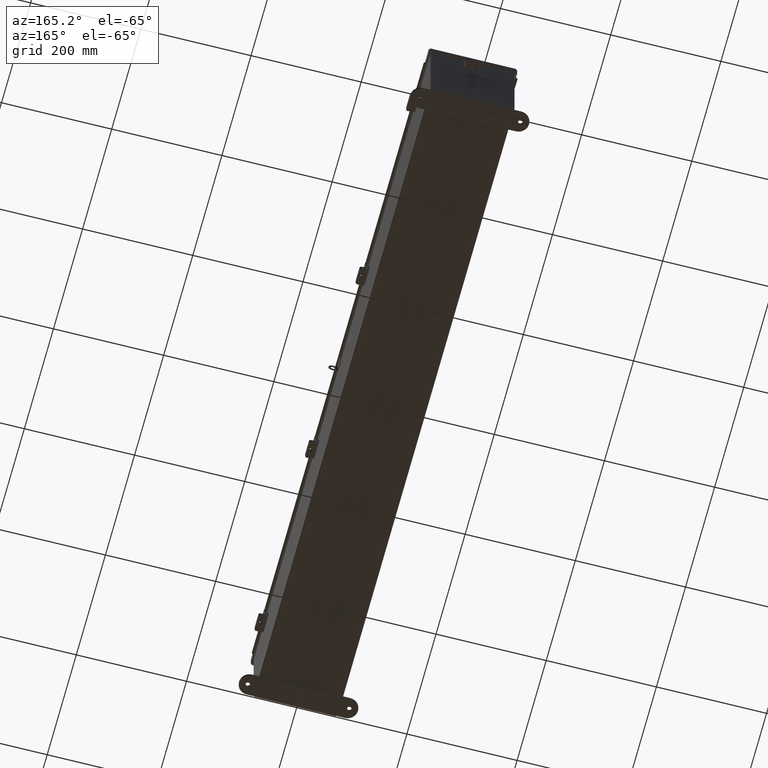
[diagram: clean part render]
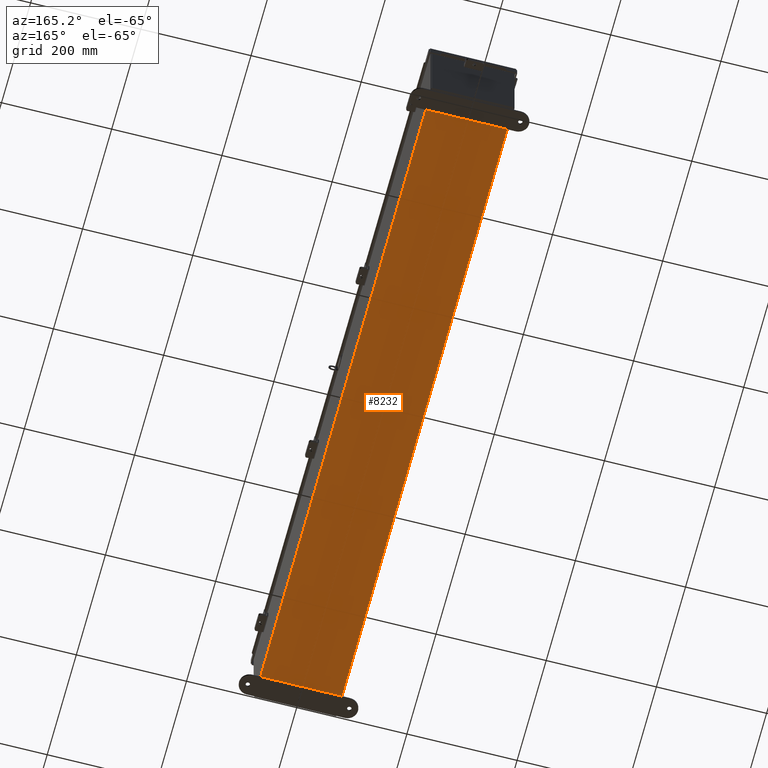
[diagram: same view with one face highlighted and labeled with its STEP entity id]
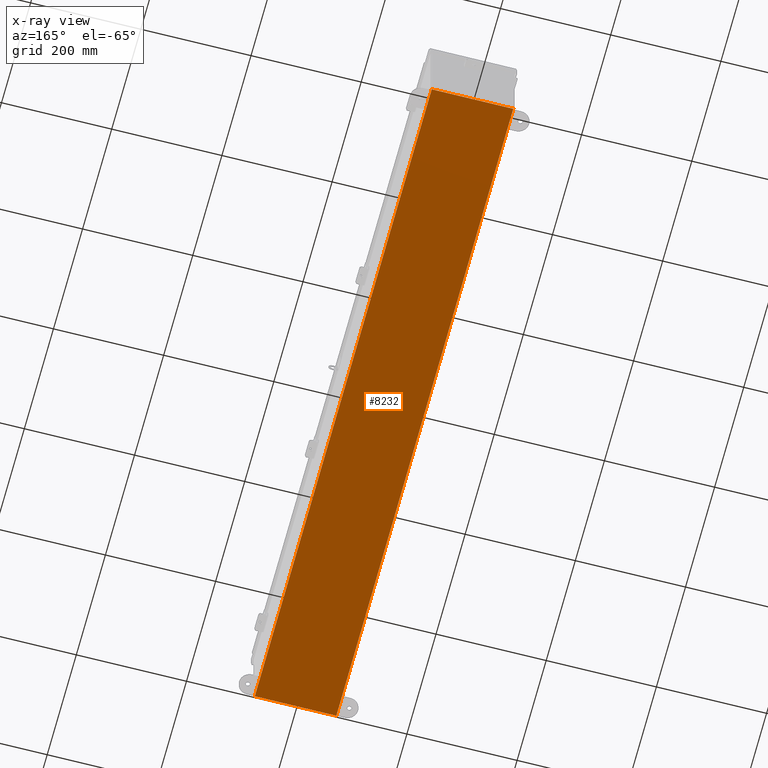
[diagram: x-ray of the same camera — body ghosted, the highlighted face saturated]
A machine part, auxiliary view. The second image highlights one B-rep face of the part: STEP entity #8232.
The next image is the same camera in x-ray: the body ghosted, the highlighted face saturated — about 0% of this face is hidden behind the body in this view.
In plain terms, the highlighted planar face has unit normal (0, 0, -1).
Its self-contained STEP definition (entity closure, byte-faithful):
#1063 = DIRECTION ( 'NONE',  ( 0.0000000000000000000, 0.0000000000000000000, -1.000000000000000000 ) ) ;
#2334 = VECTOR ( 'NONE', #31854, 39.37007874015748100 ) ;
#4241 = EDGE_LOOP ( 'NONE', ( #19514, #20027, #24587, #35080 ) ) ;
#4269 = CARTESIAN_POINT ( 'NONE',  ( 2.912299999999997400, 23.92529999999998900, -0.07469999999999994700 ) ) ;
#5028 = VECTOR ( 'NONE', #36148, 39.37007874015748100 ) ;
#5380 = VERTEX_POINT ( 'NONE', #23371 ) ;
#7744 = CARTESIAN_POINT ( 'NONE',  ( -2.912300000000002800, -23.92530000000000000, -0.07470000000000048800 ) ) ;
#7743 = LINE ( 'NONE', #19454, #16128 ) ;
#8177 = DIRECTION ( 'NONE',  ( -1.000000000000000000, -0.0000000000000000000, -0.0000000000000000000 ) ) ;
#8232 = ADVANCED_FACE ( 'NONE', ( #26667 ), #17973, .T. ) ;
#8811 = EDGE_CURVE ( 'NONE', #10560, #5380, #9823, .T. ) ;
#8955 = VECTOR ( 'NONE', #21830, 39.37007874015748100 ) ;
#9441 = CARTESIAN_POINT ( 'NONE',  ( 0.0000000000000000000, 0.0000000000000000000, -0.07470000000000000300 ) ) ;
#9813 = CARTESIAN_POINT ( 'NONE',  ( 2.912299999999997400, -23.92529999999998200, -0.07470000000000000300 ) ) ;
#9823 = LINE ( 'NONE', #7744, #8955 ) ;
#10560 = VERTEX_POINT ( 'NONE', #27950 ) ;
#10722 = CARTESIAN_POINT ( 'NONE',  ( -3.000000000000003100, -23.92530000000000000, -0.07470000000000000300 ) ) ;
#11595 = LINE ( 'NONE', #29007, #2334 ) ;
#13411 = LINE ( 'NONE', #10722, #5028 ) ;
#16128 = VECTOR ( 'NONE', #8177, 39.37007874015748100 ) ;
#16332 = EDGE_CURVE ( 'NONE', #10560, #30386, #13411, .T. ) ;
#17973 = PLANE ( 'NONE',  #27088 ) ;
#19454 = CARTESIAN_POINT ( 'NONE',  ( -3.000000000000003100, 23.92530000000000700, -0.07470000000000000300 ) ) ;
#19514 = ORIENTED_EDGE ( 'NONE', *, *, #34722, .F. ) ;
#20027 = ORIENTED_EDGE ( 'NONE', *, *, #31513, .T. ) ;
#20835 = DIRECTION ( 'NONE',  ( -1.000000000000000000, 0.0000000000000000000, -0.0000000000000000000 ) ) ;
#21830 = DIRECTION ( 'NONE',  ( -0.0000000000000000000, 1.000000000000000000, -0.0000000000000000000 ) ) ;
#23371 = CARTESIAN_POINT ( 'NONE',  ( -2.912300000000002800, 23.92530000000000700, -0.07470000000000000300 ) ) ;
#24587 = ORIENTED_EDGE ( 'NONE', *, *, #16332, .F. ) ;
#26667 = FACE_OUTER_BOUND ( 'NONE', #4241, .T. ) ;
#27088 = AXIS2_PLACEMENT_3D ( 'NONE', #9441, #1063, #20835 ) ;
#27950 = CARTESIAN_POINT ( 'NONE',  ( -2.912300000000002800, -23.92529999999999600, -0.07470000000000048800 ) ) ;
#29007 = CARTESIAN_POINT ( 'NONE',  ( 2.912299999999997400, 23.92530000000000000, -0.07469999999999994700 ) ) ;
#30386 = VERTEX_POINT ( 'NONE', #9813 ) ;
#31513 = EDGE_CURVE ( 'NONE', #32286, #30386, #11595, .T. ) ;
#31854 = DIRECTION ( 'NONE',  ( -0.0000000000000000000, -1.000000000000000000, -0.0000000000000000000 ) ) ;
#32286 = VERTEX_POINT ( 'NONE', #4269 ) ;
#34722 = EDGE_CURVE ( 'NONE', #32286, #5380, #7743, .T. ) ;
#35080 = ORIENTED_EDGE ( 'NONE', *, *, #8811, .T. ) ;
#36148 = DIRECTION ( 'NONE',  ( 1.000000000000000000, 7.284927983104702900E-016, 0.0000000000000000000 ) ) ;